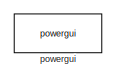
[diagram: root canvas - part 1/4, top right region]
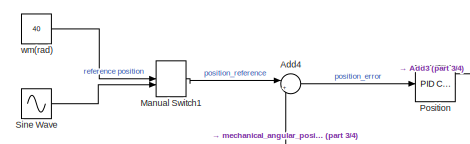
[diagram: root canvas - part 2/4, middle left region]
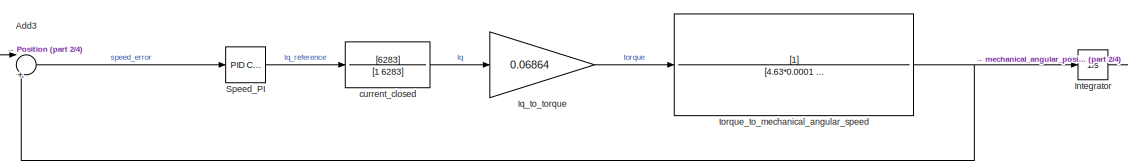
[diagram: root canvas - part 3/4, central region]
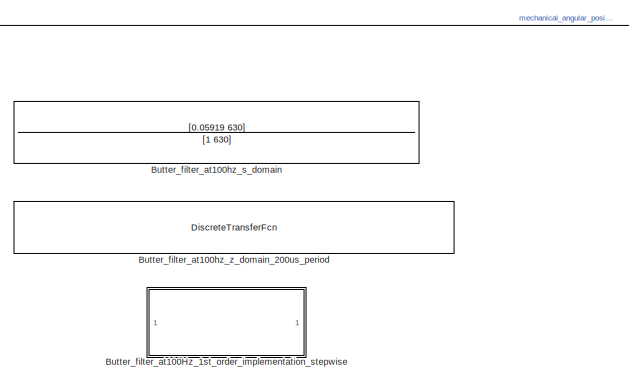
[diagram: root canvas - part 4/4, bottom center region]
MODEL slx_5fe2d5c18d6f
KIND model
CONFIG AbsTol = auto
CONFIG EnableMultiTasking = off
CONFIG FixedStep = 0.000001
CONFIG InitFcn = Ts = 10e-6;\n\nR = 0.958;\nLd = 5.25e-3;\nLq = 12e-3;\nPn = 4;\nflux = 0.1827;
CONFIG MaxStep = auto
CONFIG MinStep = auto
CONFIG RelTol = 1e-4
CONFIG SampleTimeConstraint = Unconstrained
CONFIG SolverName = FixedStepAuto
CONFIG StartTime = 0.0
CONFIG StopTime = 0.01
WORKSPACE source: mxarray member
WORKSPACE Flux_Linkage = 0.027213034
WORKSPACE Torque_Constant = 0.2885
WORKSPACE Voltage_Constant = 30.23
BLOCK [Sum] Add3
  Inputs = |+-
  Ports = [2, 1]
BLOCK [Sum] Add4
  Inputs = |+-
  Ports = [2, 1]
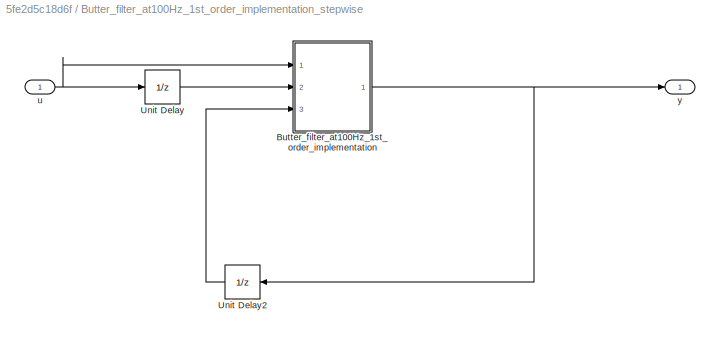
BLOCK [SubSystem] Butter_filter_at100Hz_1st_order_implementation_stepwise
  Commented = on
  Ports = [1, 1]
  RequestExecContextInheritance = off
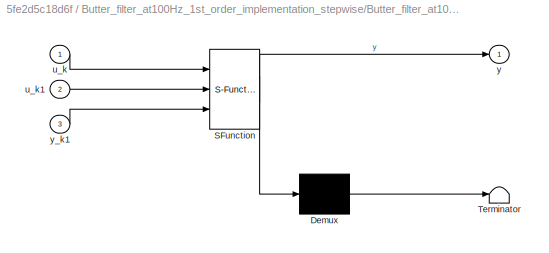
BLOCK [SubSystem] Butter_filter_at100Hz_1st_order_implementation_stepwise/Butter_filter_at100Hz_1st_order_implementation
  ErrorFcn = Stateflow.Translate.translate
  PermitHierarchicalResolution = ExplicitOnly
  Ports = [3, 1]
  RequestExecContextInheritance = off
  SFBlockType = MATLAB Function
  TreatAsAtomicUnit = on
BLOCK [Demux] Butter_filter_at100Hz_1st_order_implementation_stepwise/Butter_filter_at100Hz_1st_order_implementation/ Demux 
  Outputs = 1
  Ports = [1, 1]
BLOCK [S-Function] Butter_filter_at100Hz_1st_order_implementation_stepwise/Butter_filter_at100Hz_1st_order_implementation/ SFunction 
  EnableBusSupport = on
  FunctionName = sf_sfun
  PortCounts = [3 2]
  Ports = [3, 2]
  SFcnIsStateOwnerBlock = off
  SFunctionDeploymentMode = off
  Tag = Stateflow S-Function 3
BLOCK [Terminator] Butter_filter_at100Hz_1st_order_implementation_stepwise/Butter_filter_at100Hz_1st_order_implementation/ Terminator 
BLOCK [Inport] Butter_filter_at100Hz_1st_order_implementation_stepwise/Butter_filter_at100Hz_1st_order_implementation/u_k
BLOCK [Inport] Butter_filter_at100Hz_1st_order_implementation_stepwise/Butter_filter_at100Hz_1st_order_implementation/u_k1
  Port = 2
BLOCK [Outport] Butter_filter_at100Hz_1st_order_implementation_stepwise/Butter_filter_at100Hz_1st_order_implementation/y
BLOCK [Inport] Butter_filter_at100Hz_1st_order_implementation_stepwise/Butter_filter_at100Hz_1st_order_implementation/y_k1
  Port = 3
BLOCK [UnitDelay] Butter_filter_at100Hz_1st_order_implementation_stepwise/Unit Delay
  HasFrameUpgradeWarning = on
  SampleTime = 0.0002
BLOCK [UnitDelay] Butter_filter_at100Hz_1st_order_implementation_stepwise/Unit Delay2
  HasFrameUpgradeWarning = on
  NameLocation = top
  SampleTime = 0.0002
BLOCK [Inport] Butter_filter_at100Hz_1st_order_implementation_stepwise/u
BLOCK [Outport] Butter_filter_at100Hz_1st_order_implementation_stepwise/y
BLOCK [TransferFcn] Butter_filter_at100hz_s_domain
  Commented = on
  Denominator = [1 630]
  Numerator = [0.05919 630]
BLOCK [DiscreteTransferFcn] Butter_filter_at100hz_z_domain_200us_period
  Commented = on
  Denominator = [1 -0.8816]
  InputPortMap = u0
  Numerator = [0.05919 0.05919]
  Ports = [1, 1]
  SampleTime = 0.0002
BLOCK [Integrator] Integrator
  Ports = [1, 1]
BLOCK [Gain] Iq_to_torque
  Gain = 0.06864
BLOCK [ManualSwitch] Manual Switch1
BLOCK [Reference] Position  REF=pid_lib/PID Controller
  Ports = [1, 1]
  SourceBlock = pid_lib/PID Controller
  SourceProductBaseCode = SL
  SourceType = PID 1dof
BLOCK [Sin] Sine Wave
  Amplitude = 2*pi
  Frequency = 2*pi*10
  Ports = [0, 1]
  SampleTime = 0
BLOCK [Reference] Speed_PI  REF=pid_lib/PID Controller
  Ports = [1, 1]
  SourceBlock = pid_lib/PID Controller
  SourceProductBaseCode = SL
  SourceType = PID 1dof
BLOCK [TransferFcn] current_closed
  Denominator = [1 6283]
  Numerator = [6283]
BLOCK [Reference] powergui  REF=spspowerguiLib/powergui
  Ports = []
  SourceBlock = spspowerguiLib/powergui
  SourceProductBaseCode = PS
  SourceType = PSB option menu block
BLOCK [TransferFcn] torque_to_mechanical_angular_speed
  Denominator = [4.63*0.0001 0]
BLOCK [Constant] wm(rad)
  Value = 40
LINE Add3:1 -> Speed_PI:1
LINE Add4:1 -> Position:1
NET Butter_filter_at100Hz_1st_order_implementation_stepwise/Butter_filter_at100Hz_1st_order_implementation:1 -> Butter_filter_at100Hz_1st_order_implementation_stepwise/Unit Delay2:1, Butter_filter_at100Hz_1st_order_implementation_stepwise/y:1
LINE Butter_filter_at100Hz_1st_order_implementation_stepwise/Unit Delay2:1 -> Butter_filter_at100Hz_1st_order_implementation_stepwise/Butter_filter_at100Hz_1st_order_implementation:3
LINE Butter_filter_at100Hz_1st_order_implementation_stepwise/Unit Delay:1 -> Butter_filter_at100Hz_1st_order_implementation_stepwise/Butter_filter_at100Hz_1st_order_implementation:2
NET Butter_filter_at100Hz_1st_order_implementation_stepwise/u:1 -> Butter_filter_at100Hz_1st_order_implementation_stepwise/Butter_filter_at100Hz_1st_order_implementation:1, Butter_filter_at100Hz_1st_order_implementation_stepwise/Unit Delay:1
LINE Integrator:1 -> Add4:2
LINE Iq_to_torque:1 -> torque_to_mechanical_angular_speed:1
LINE Manual Switch1:1 -> Add4:1
LINE Position:1 -> Add3:1
LINE Sine Wave:1 -> Manual Switch1:2
LINE Speed_PI:1 -> current_closed:1
LINE current_closed:1 -> Iq_to_torque:1
NET torque_to_mechanical_angular_speed:1 -> Add3:2, Integrator:1
LINE wm(rad):1 -> Manual Switch1:1
note: NET lines group one-source signal fan-out (src -> all destinations, sorted); 1:1 wires keep LINE
CHART Butter_filter_at100Hz_1st_order_implementation_stepwise/Butter_filter_at100Hz_1st_order_implementation states=1 transitions=1
  STATE_LABEL 'eML_blk_kernel()'
  STATE_LABEL 'SCRIPT:\nfunction y = fcn(u_k,u_k1,y_k1)\n\ny = 0.8816*y_k1 + 0.05915*u_k + 0.05915*u_k1;\n'
CHART  states=0 transitions=0
